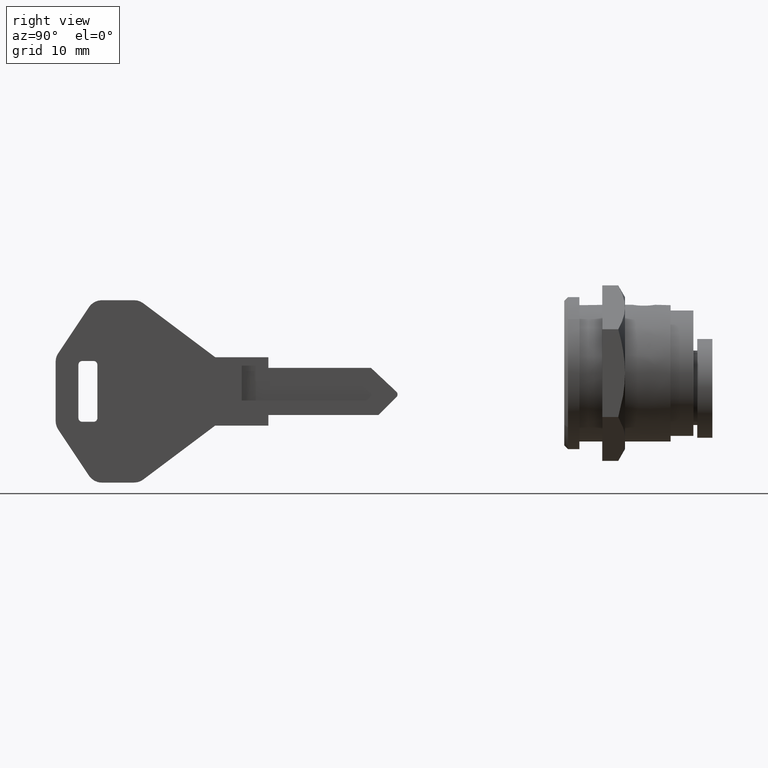
[diagram: clean part render]
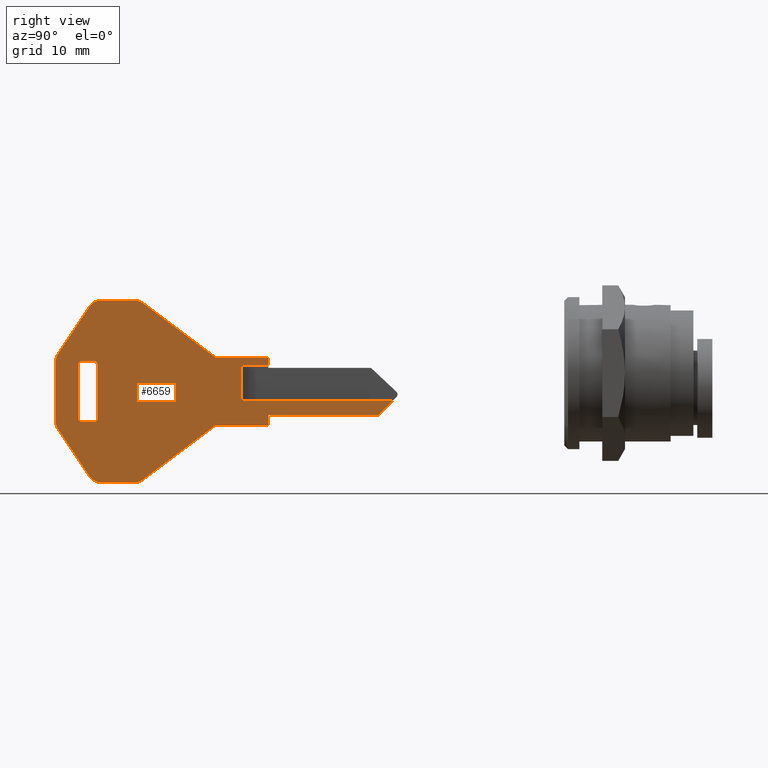
[diagram: same view with one face highlighted and labeled with its STEP entity id]
A machine part, right view. The second image highlights one B-rep face of the part: STEP entity #6659.
In plain terms, the highlighted face is a freeform B-spline surface patch.
Its self-contained STEP definition (entity closure, byte-faithful):
#5484=CARTESIAN_POINT('',(-42.434800000000003,-0.800000000000023,1.0));
#5485=VERTEX_POINT('',#5484);
#5495=CARTESIAN_POINT('',(-42.434800000000003,-0.800000000000023,-3.600000000000110));
#5496=VERTEX_POINT('',#5495);
#5497=CARTESIAN_POINT('',(-42.434800000000003,-0.800000000000023,1.0));
#5498=CARTESIAN_POINT('',(-42.434800000000003,-0.800000000000023,-3.600000000000110));
#5499=QUASI_UNIFORM_CURVE('',1,(#5497,#5498),.UNSPECIFIED.,.F.,.U.);
#5500=EDGE_CURVE('',#5485,#5496,#5499,.T.);
#5691=CARTESIAN_POINT('',(-38.934800000000003,-0.800000000000023,1.0));
#5692=VERTEX_POINT('',#5691);
#5693=CARTESIAN_POINT('',(-38.934800000000003,-0.800000000000023,1.0));
#5694=CARTESIAN_POINT('',(-42.434800000000003,-0.800000000000023,1.0));
#5695=QUASI_UNIFORM_CURVE('',1,(#5693,#5694),.UNSPECIFIED.,.F.,.U.);
#5696=EDGE_CURVE('',#5692,#5485,#5695,.T.);
#5715=CARTESIAN_POINT('',(-22.529130775788651,-0.800000000000023,-3.600000000000110));
#5716=VERTEX_POINT('',#5715);
#5717=CARTESIAN_POINT('',(-42.434800000000003,-0.800000000000023,-3.600000000000110));
#5718=CARTESIAN_POINT('',(-22.529130775788651,-0.800000000000023,-3.600000000000110));
#5719=QUASI_UNIFORM_CURVE('',1,(#5717,#5718),.UNSPECIFIED.,.F.,.U.);
#5720=EDGE_CURVE('',#5496,#5716,#5719,.T.);
#5744=CARTESIAN_POINT('',(-55.401800000000001,-0.800000000000023,9.199999999999871));
#5745=VERTEX_POINT('',#5744);
#5751=CARTESIAN_POINT('',(-45.934800000000003,-0.800000000000023,2.100000000000000));
#5752=VERTEX_POINT('',#5751);
#5753=CARTESIAN_POINT('',(-55.401800000000001,-0.800000000000023,9.199999999999871));
#5754=CARTESIAN_POINT('',(-45.934800000000003,-0.800000000000023,2.100000000000000));
#5755=QUASI_UNIFORM_CURVE('',1,(#5753,#5754),.UNSPECIFIED.,.F.,.U.);
#5756=EDGE_CURVE('',#5745,#5752,#5755,.T.);
#5780=CARTESIAN_POINT('',(-61.434800000000003,-0.800000000000023,-5.900000000000000));
#5781=VERTEX_POINT('',#5780);
#5787=CARTESIAN_POINT('',(-61.434800000000003,-0.800000000000023,1.099999999999880));
#5788=VERTEX_POINT('',#5787);
#5789=CARTESIAN_POINT('',(-61.434800000000003,-0.800000000000023,-5.900000000000000));
#5790=CARTESIAN_POINT('',(-61.434800000000003,-0.800000000000023,1.099999999999880));
#5791=QUASI_UNIFORM_CURVE('',1,(#5789,#5790),.UNSPECIFIED.,.F.,.U.);
#5792=EDGE_CURVE('',#5781,#5788,#5791,.T.);
#5829=CARTESIAN_POINT('',(-61.934800000000003,-0.800000000000023,1.599999999999880));
#5830=VERTEX_POINT('',#5829);
#5831=CARTESIAN_POINT('',(-61.434800000000003,-0.800000000000023,1.099999999999880));
#5832=CARTESIAN_POINT('',(-61.434684660874382,-0.800000000000024,1.173653316950980));
#5833=CARTESIAN_POINT('',(-61.466094995648042,-0.800000000000021,1.312629906935998));
#5834=CARTESIAN_POINT('',(-61.585297360829713,-0.800000000000024,1.473428385010988));
#5835=CARTESIAN_POINT('',(-61.746676579131453,-0.800000000000022,1.575550660927633));
#5836=CARTESIAN_POINT('',(-61.869341132623099,-0.800000000000025,1.600067279112185));
#5837=CARTESIAN_POINT('',(-61.934800000000003,-0.800000000000023,1.599999999999880));
#5838=B_SPLINE_CURVE_WITH_KNOTS('',3,(#5831,#5832,#5833,#5834,#5835,#5836,#5837),.UNSPECIFIED.,.F.,.U.,(4,1,1,1,4),(0.000000153094151,0.220920011261138,0.417279695214682,0.589107744513807,0.785476941653914),.UNSPECIFIED.);
#5839=EDGE_CURVE('',#5788,#5830,#5838,.T.);
#5862=CARTESIAN_POINT('',(-63.434800000000003,-0.800000000000023,1.600000000000000));
#5863=VERTEX_POINT('',#5862);
#5864=CARTESIAN_POINT('',(-61.934800000000003,-0.800000000000023,1.599999999999880));
#5865=CARTESIAN_POINT('',(-63.434800000000003,-0.800000000000023,1.600000000000000));
#5866=QUASI_UNIFORM_CURVE('',1,(#5864,#5865),.UNSPECIFIED.,.F.,.U.);
#5867=EDGE_CURVE('',#5830,#5863,#5866,.T.);
#5904=CARTESIAN_POINT('',(-63.934800000000003,-0.800000000000023,1.099999999999880));
#5905=VERTEX_POINT('',#5904);
#5906=CARTESIAN_POINT('',(-63.434800000000003,-0.800000000000023,1.600000000000000));
#5907=CARTESIAN_POINT('',(-63.500260222046542,-0.800000000000023,1.600067226082890));
#5908=CARTESIAN_POINT('',(-63.622922827033740,-0.800000000000023,1.575550556536872));
#5909=CARTESIAN_POINT('',(-63.784302573044698,-0.800000000000023,1.473428620159047));
#5910=CARTESIAN_POINT('',(-63.903505129757683,-0.800000000000022,1.312629762877460));
#5911=CARTESIAN_POINT('',(-63.934915257689163,-0.800000000000023,1.173653377133935));
#5912=CARTESIAN_POINT('',(-63.934800000000003,-0.800000000000023,1.099999999999880));
#5913=B_SPLINE_CURVE_WITH_KNOTS('',3,(#5906,#5907,#5908,#5909,#5910,#5911,#5912),.UNSPECIFIED.,.F.,.U.,(4,1,1,1,4),(0.000000153093930,0.196369350233716,0.368197399532799,0.564557083486602,0.785476941654050),.UNSPECIFIED.);
#5914=EDGE_CURVE('',#5863,#5905,#5913,.T.);
#5937=CARTESIAN_POINT('',(-63.934800000000003,-0.800000000000023,-5.900000000000000));
#5938=VERTEX_POINT('',#5937);
#5939=CARTESIAN_POINT('',(-63.934800000000003,-0.800000000000023,1.099999999999880));
#5940=CARTESIAN_POINT('',(-63.934800000000003,-0.800000000000023,-5.900000000000000));
#5941=QUASI_UNIFORM_CURVE('',1,(#5939,#5940),.UNSPECIFIED.,.F.,.U.);
#5942=EDGE_CURVE('',#5905,#5938,#5941,.T.);
#5979=CARTESIAN_POINT('',(-63.434800000000003,-0.800000000000023,-6.400000000000000));
#5980=VERTEX_POINT('',#5979);
#5981=CARTESIAN_POINT('',(-63.934800000000003,-0.800000000000023,-5.900000000000000));
#5982=CARTESIAN_POINT('',(-63.934867006776869,-0.800000000000024,-5.965460472775773));
#5983=CARTESIAN_POINT('',(-63.910346913499367,-0.800000000000023,-6.088114914258549));
#5984=CARTESIAN_POINT('',(-63.803809390809462,-0.800000000000023,-6.256559329661354));
#5985=CARTESIAN_POINT('',(-63.639313978227477,-0.800000000000023,-6.372333823988904));
#5986=CARTESIAN_POINT('',(-63.500253879018260,-0.800000000000023,-6.400059716177875));
#5987=CARTESIAN_POINT('',(-63.434800000000003,-0.800000000000023,-6.400000000000000));
#5988=B_SPLINE_CURVE_WITH_KNOTS('',3,(#5981,#5982,#5983,#5984,#5985,#5986,#5987),.UNSPECIFIED.,.F.,.U.,(4,1,1,1,4),(0.000000153092485,0.196369350232937,0.368197399532441,0.589107744513697,0.785476941653900),.UNSPECIFIED.);
#5989=EDGE_CURVE('',#5938,#5980,#5988,.T.);
#6012=CARTESIAN_POINT('',(-61.934800000000003,-0.800000000000023,-6.400000000000000));
#6013=VERTEX_POINT('',#6012);
#6014=CARTESIAN_POINT('',(-63.434800000000003,-0.800000000000023,-6.400000000000000));
#6015=CARTESIAN_POINT('',(-61.934800000000003,-0.800000000000023,-6.400000000000000));
#6016=QUASI_UNIFORM_CURVE('',1,(#6014,#6015),.UNSPECIFIED.,.F.,.U.);
#6017=EDGE_CURVE('',#5980,#6013,#6016,.T.);
#6052=CARTESIAN_POINT('',(-61.934800000000003,-0.800000000000023,-6.400000000000000));
#6053=CARTESIAN_POINT('',(-61.844757187724959,-0.800000000000024,-6.400244704899497));
#6054=CARTESIAN_POINT('',(-61.689567798363427,-0.800000000000021,-6.356861077800649));
#6055=CARTESIAN_POINT('',(-61.547484266287057,-0.800000000000026,-6.228006533432561));
#6056=CARTESIAN_POINT('',(-61.458741982740683,-0.800000000000019,-6.079904843197010));
#6057=CARTESIAN_POINT('',(-61.434677601298532,-0.800000000000026,-5.973659559281209));
#6058=CARTESIAN_POINT('',(-61.434800000000003,-0.800000000000023,-5.900000000000000));
#6059=B_SPLINE_CURVE_WITH_KNOTS('',3,(#6052,#6053,#6054,#6055,#6056,#6057,#6058),.UNSPECIFIED.,.F.,.U.,(4,1,1,1,4),(0.000000153093028,0.270018898110396,0.466365490627535,0.564557083486475,0.785476941653890),.UNSPECIFIED.);
#6060=EDGE_CURVE('',#6013,#5781,#6059,.T.);
#6079=CARTESIAN_POINT('',(-38.934800000000003,-0.800000000000023,2.100000000000000));
#6080=VERTEX_POINT('',#6079);
#6081=CARTESIAN_POINT('',(-45.934800000000003,-0.800000000000023,2.100000000000000));
#6082=CARTESIAN_POINT('',(-38.934800000000003,-0.800000000000023,2.100000000000000));
#6083=QUASI_UNIFORM_CURVE('',1,(#6081,#6082),.UNSPECIFIED.,.F.,.U.);
#6084=EDGE_CURVE('',#5752,#6080,#6083,.T.);
#6108=CARTESIAN_POINT('',(-24.434799999999999,-0.800000000000023,-5.500000000000000));
#6109=VERTEX_POINT('',#6108);
#6115=CARTESIAN_POINT('',(-38.934800000000003,-0.800000000000023,-5.500000000000000));
#6116=VERTEX_POINT('',#6115);
#6117=CARTESIAN_POINT('',(-24.434799999999999,-0.800000000000023,-5.500000000000000));
#6118=CARTESIAN_POINT('',(-38.934800000000003,-0.800000000000023,-5.500000000000000));
#6119=QUASI_UNIFORM_CURVE('',1,(#6117,#6118),.UNSPECIFIED.,.F.,.U.);
#6120=EDGE_CURVE('',#6109,#6116,#6119,.T.);
#6143=CARTESIAN_POINT('',(-38.934800000000003,-0.800000000000023,-6.900000000000000));
#6144=VERTEX_POINT('',#6143);
#6145=CARTESIAN_POINT('',(-38.934800000000003,-0.800000000000023,-5.500000000000000));
#6146=CARTESIAN_POINT('',(-38.934800000000003,-0.800000000000023,-6.900000000000000));
#6147=QUASI_UNIFORM_CURVE('',1,(#6145,#6146),.UNSPECIFIED.,.F.,.U.);
#6148=EDGE_CURVE('',#6116,#6144,#6147,.T.);
#6171=CARTESIAN_POINT('',(-45.934800000000003,-0.800000000000023,-6.900000000000000));
#6172=VERTEX_POINT('',#6171);
#6173=CARTESIAN_POINT('',(-38.934800000000003,-0.800000000000023,-6.900000000000000));
#6174=CARTESIAN_POINT('',(-45.934800000000003,-0.800000000000023,-6.900000000000000));
#6175=QUASI_UNIFORM_CURVE('',1,(#6173,#6174),.UNSPECIFIED.,.F.,.U.);
#6176=EDGE_CURVE('',#6144,#6172,#6175,.T.);
#6199=CARTESIAN_POINT('',(-55.401800000000001,-0.800000000000023,-14.0));
#6200=VERTEX_POINT('',#6199);
#6201=CARTESIAN_POINT('',(-45.934800000000003,-0.800000000000023,-6.900000000000000));
#6202=CARTESIAN_POINT('',(-55.401800000000001,-0.800000000000023,-14.0));
#6203=QUASI_UNIFORM_CURVE('',1,(#6201,#6202),.UNSPECIFIED.,.F.,.U.);
#6204=EDGE_CURVE('',#6172,#6200,#6203,.T.);
#6239=CARTESIAN_POINT('',(-56.601799999999997,-0.800000000000023,-14.400000000000000));
#6240=VERTEX_POINT('',#6239);
#6241=CARTESIAN_POINT('',(-56.601799999999997,-0.800000000000023,-14.400000000000000));
#6242=CARTESIAN_POINT('',(-56.427515831656649,-0.800000000000024,-14.400045107929749));
#6243=CARTESIAN_POINT('',(-55.998524323742188,-0.800000000000021,-14.343584179207740));
#6244=CARTESIAN_POINT('',(-55.605448175118411,-0.800000000000025,-14.153080584536781));
#6245=CARTESIAN_POINT('',(-55.401800000000001,-0.800000000000023,-14.0));
#6246=B_SPLINE_CURVE_WITH_KNOTS('',3,(#6241,#6242,#6243,#6244,#6245),.UNSPECIFIED.,.F.,.U.,(4,1,4),(0.000000025002516,0.522860056054549,1.287023899497986),.UNSPECIFIED.);
#6247=EDGE_CURVE('',#6240,#6200,#6246,.T.);
#6270=CARTESIAN_POINT('',(-60.864800000000002,-0.800000000000023,-14.400000000000000));
#6271=VERTEX_POINT('',#6270);
#6272=CARTESIAN_POINT('',(-56.601799999999997,-0.800000000000023,-14.400000000000000));
#6273=CARTESIAN_POINT('',(-60.864800000000002,-0.800000000000023,-14.400000000000000));
#6274=QUASI_UNIFORM_CURVE('',1,(#6272,#6273),.UNSPECIFIED.,.F.,.U.);
#6275=EDGE_CURVE('',#6240,#6271,#6274,.T.);
#6312=CARTESIAN_POINT('',(-62.528799999999997,-0.800000000000023,-13.510000000000000));
#6313=VERTEX_POINT('',#6312);
#6314=CARTESIAN_POINT('',(-62.528799999999997,-0.800000000000023,-13.510000000000000));
#6315=CARTESIAN_POINT('',(-62.387058565034692,-0.800000000000022,-13.723120084551271));
#6316=CARTESIAN_POINT('',(-62.122852509854837,-0.800000000000023,-13.989605042723580));
#6317=CARTESIAN_POINT('',(-61.666640070268649,-0.800000000000024,-14.247240540949370));
#6318=CARTESIAN_POINT('',(-61.284497713117823,-0.800000000000022,-14.371534584072039));
#6319=CARTESIAN_POINT('',(-60.997866060761879,-0.800000000000025,-14.400091069018959));
#6320=CARTESIAN_POINT('',(-60.864800000000002,-0.800000000000023,-14.400000000000000));
#6321=B_SPLINE_CURVE_WITH_KNOTS('',3,(#6314,#6315,#6316,#6317,#6318,#6319,#6320),.UNSPECIFIED.,.F.,.U.,(4,1,1,1,4),(0.000000054996480,0.767708716500230,1.105483976550476,1.566124339190238,1.965328050449966),.UNSPECIFIED.);
#6322=EDGE_CURVE('',#6313,#6271,#6321,.T.);
#6345=CARTESIAN_POINT('',(-66.579333431728799,-0.800000000000023,-7.433204635347440));
#6346=VERTEX_POINT('',#6345);
#6347=CARTESIAN_POINT('',(-62.528799999999997,-0.800000000000023,-13.510000000000000));
#6348=CARTESIAN_POINT('',(-66.579333431728799,-0.800000000000023,-7.433204635347440));
#6349=QUASI_UNIFORM_CURVE('',1,(#6347,#6348),.UNSPECIFIED.,.F.,.U.);
#6350=EDGE_CURVE('',#6313,#6346,#6349,.T.);
#6385=CARTESIAN_POINT('',(-66.934799999999996,-0.800000000000023,-6.295000000000100));
#6386=VERTEX_POINT('',#6385);
#6387=CARTESIAN_POINT('',(-66.934799999999996,-0.800000000000023,-6.295000000000100));
#6388=CARTESIAN_POINT('',(-66.934999789453997,-0.800000000000021,-6.534675752883412));
#6389=CARTESIAN_POINT('',(-66.861327622042367,-0.800000000000031,-6.938118678135708));
#6390=CARTESIAN_POINT('',(-66.672669408100788,-0.800000000000016,-7.298397091506386));
#6391=CARTESIAN_POINT('',(-66.579333431728799,-0.800000000000023,-7.433204635347440));
#6392=B_SPLINE_CURVE_WITH_KNOTS('',3,(#6387,#6388,#6389,#6390,#6391),.UNSPECIFIED.,.F.,.U.,(4,1,4),(0.000000023987031,0.718937478686960,1.210845506727563),.UNSPECIFIED.);
#6393=EDGE_CURVE('',#6386,#6346,#6392,.T.);
#6416=CARTESIAN_POINT('',(-66.934799999999996,-0.800000000000023,1.494447999999892));
#6417=VERTEX_POINT('',#6416);
#6418=CARTESIAN_POINT('',(-66.934799999999996,-0.800000000000023,-6.295000000000100));
#6419=CARTESIAN_POINT('',(-66.934799999999996,-0.800000000000023,1.494447999999892));
#6420=QUASI_UNIFORM_CURVE('',1,(#6418,#6419),.UNSPECIFIED.,.F.,.U.);
#6421=EDGE_CURVE('',#6386,#6417,#6420,.T.);
#6456=CARTESIAN_POINT('',(-66.598900579497396,-0.800000000000023,2.603848406217820));
#6457=VERTEX_POINT('',#6456);
#6458=CARTESIAN_POINT('',(-66.598900579497396,-0.800000000000023,2.603848406217820));
#6459=CARTESIAN_POINT('',(-66.714521460859572,-0.800000000000025,2.430627800987279));
#6460=CARTESIAN_POINT('',(-66.880366480918042,-0.800000000000020,2.070168108583510));
#6461=CARTESIAN_POINT('',(-66.934870789537996,-0.800000000000024,1.678209315565442));
#6462=CARTESIAN_POINT('',(-66.934799999999996,-0.800000000000023,1.494447999999892));
#6463=B_SPLINE_CURVE_WITH_KNOTS('',3,(#6458,#6459,#6460,#6461,#6462),.UNSPECIFIED.,.F.,.U.,(4,1,4),(0.000000020736863,0.624751508344385,1.176021766054201),.UNSPECIFIED.);
#6464=EDGE_CURVE('',#6457,#6417,#6463,.T.);
#6487=CARTESIAN_POINT('',(-62.548045375210087,-0.800000000000023,8.680131939548950));
#6488=VERTEX_POINT('',#6487);
#6489=CARTESIAN_POINT('',(-66.598900579497396,-0.800000000000023,2.603848406217820));
#6490=CARTESIAN_POINT('',(-62.548045375210087,-0.800000000000023,8.680131939548950));
#6491=QUASI_UNIFORM_CURVE('',1,(#6489,#6490),.UNSPECIFIED.,.F.,.U.);
#6492=EDGE_CURVE('',#6457,#6488,#6491,.T.);
#6529=CARTESIAN_POINT('',(-60.864800000000002,-0.800000000000023,9.600000000000000));
#6530=VERTEX_POINT('',#6529);
#6531=CARTESIAN_POINT('',(-60.864800000000002,-0.800000000000023,9.600000000000000));
#6532=CARTESIAN_POINT('',(-61.073208511498663,-0.800000000000021,9.600118567614747));
#6533=CARTESIAN_POINT('',(-61.427395110364138,-0.800000000000031,9.544099982801418));
#6534=CARTESIAN_POINT('',(-61.876833478919700,-0.800000000000012,9.342304120408086));
#6535=CARTESIAN_POINT('',(-62.248389648204302,-0.800000000000039,9.069699299905798));
#6536=CARTESIAN_POINT('',(-62.452423912674298,-0.800000000000008,8.829243103409281));
#6537=CARTESIAN_POINT('',(-62.548045375210087,-0.800000000000023,8.680131939548950));
#6538=B_SPLINE_CURVE_WITH_KNOTS('',3,(#6531,#6532,#6533,#6534,#6535,#6536,#6537),.UNSPECIFIED.,.F.,.U.,(4,1,1,1,4),(0.000000052983301,0.625185058650228,1.062797584958854,1.469176780467822,2.000582031001581),.UNSPECIFIED.);
#6539=EDGE_CURVE('',#6530,#6488,#6538,.T.);
#6562=CARTESIAN_POINT('',(-56.601799999999997,-0.800000000000023,9.599999999999879));
#6563=VERTEX_POINT('',#6562);
#6564=CARTESIAN_POINT('',(-60.864800000000002,-0.800000000000023,9.600000000000000));
#6565=CARTESIAN_POINT('',(-56.601799999999997,-0.800000000000023,9.599999999999879));
#6566=QUASI_UNIFORM_CURVE('',1,(#6564,#6565),.UNSPECIFIED.,.F.,.U.);
#6567=EDGE_CURVE('',#6530,#6563,#6566,.T.);
#6600=CARTESIAN_POINT('',(-55.401800000000001,-0.800000000000023,9.199999999999871));
#6601=CARTESIAN_POINT('',(-55.605446832431262,-0.800000000000024,9.353084628540321));
#6602=CARTESIAN_POINT('',(-55.998525999239590,-0.800000000000019,9.543578477194433));
#6603=CARTESIAN_POINT('',(-56.427514993529861,-0.800000000000026,9.600047021941370));
#6604=CARTESIAN_POINT('',(-56.601799999999997,-0.800000000000023,9.599999999999879));
#6605=B_SPLINE_CURVE_WITH_KNOTS('',3,(#6600,#6601,#6602,#6603,#6604),.UNSPECIFIED.,.F.,.U.,(4,1,4),(0.000000025002320,0.764163868445540,1.287023899498037),.UNSPECIFIED.);
#6606=EDGE_CURVE('',#5745,#6563,#6605,.T.);
#6612=CARTESIAN_POINT('',(-69.152862257985248,-0.800000000000000,10.798800318328141));
#6613=CARTESIAN_POINT('',(-20.311066532715301,-0.800000000000000,10.798800318328141));
#6614=CARTESIAN_POINT('',(-69.152862257985248,-0.800000000000000,-15.598798816291101));
#6615=CARTESIAN_POINT('',(-20.311066532715301,-0.800000000000000,-15.598798816291101));
#6616=B_SPLINE_SURFACE_WITH_KNOTS('',1,1,((#6612,#6614),(#6613,#6615)),.UNSPECIFIED.,.F.,.F.,.U.,(2,2),(2,2),(0.0,48.841795725269947),(0.0,26.397599134619231),.UNSPECIFIED.);
#6617=CARTESIAN_POINT('',(-22.529130775788651,-0.800000000000023,-3.600000000000110));
#6618=CARTESIAN_POINT('',(-24.434799999999999,-0.800000000000023,-5.500000000000000));
#6619=QUASI_UNIFORM_CURVE('',1,(#6617,#6618),.UNSPECIFIED.,.F.,.U.);
#6620=EDGE_CURVE('',#5716,#6109,#6619,.T.);
#6621=ORIENTED_EDGE('',*,*,#6620,.F.);
#6622=ORIENTED_EDGE('',*,*,#5720,.F.);
#6623=ORIENTED_EDGE('',*,*,#5500,.F.);
#6624=ORIENTED_EDGE('',*,*,#5696,.F.);
#6625=CARTESIAN_POINT('',(-38.934800000000003,-0.800000000000023,2.100000000000000));
#6626=CARTESIAN_POINT('',(-38.934800000000003,-0.800000000000023,1.0));
#6627=QUASI_UNIFORM_CURVE('',1,(#6625,#6626),.UNSPECIFIED.,.F.,.U.);
#6628=EDGE_CURVE('',#6080,#5692,#6627,.T.);
#6629=ORIENTED_EDGE('',*,*,#6628,.F.);
#6630=ORIENTED_EDGE('',*,*,#6084,.F.);
#6631=ORIENTED_EDGE('',*,*,#5756,.F.);
#6632=ORIENTED_EDGE('',*,*,#6606,.T.);
#6633=ORIENTED_EDGE('',*,*,#6567,.F.);
#6634=ORIENTED_EDGE('',*,*,#6539,.T.);
#6635=ORIENTED_EDGE('',*,*,#6492,.F.);
#6636=ORIENTED_EDGE('',*,*,#6464,.T.);
#6637=ORIENTED_EDGE('',*,*,#6421,.F.);
#6638=ORIENTED_EDGE('',*,*,#6393,.T.);
#6639=ORIENTED_EDGE('',*,*,#6350,.F.);
#6640=ORIENTED_EDGE('',*,*,#6322,.T.);
#6641=ORIENTED_EDGE('',*,*,#6275,.F.);
#6642=ORIENTED_EDGE('',*,*,#6247,.T.);
#6643=ORIENTED_EDGE('',*,*,#6204,.F.);
#6644=ORIENTED_EDGE('',*,*,#6176,.F.);
#6645=ORIENTED_EDGE('',*,*,#6148,.F.);
#6646=ORIENTED_EDGE('',*,*,#6120,.F.);
#6647=EDGE_LOOP('',(#6621,#6622,#6623,#6624,#6629,#6630,#6631,#6632,#6633,#6634,#6635,#6636,#6637,#6638,#6639,#6640,#6641,#6642,#6643,#6644,#6645,#6646));
#6648=FACE_OUTER_BOUND('',#6647,.T.);
#6649=ORIENTED_EDGE('',*,*,#6060,.F.);
#6650=ORIENTED_EDGE('',*,*,#6017,.F.);
#6651=ORIENTED_EDGE('',*,*,#5989,.F.);
#6652=ORIENTED_EDGE('',*,*,#5942,.F.);
#6653=ORIENTED_EDGE('',*,*,#5914,.F.);
#6654=ORIENTED_EDGE('',*,*,#5867,.F.);
#6655=ORIENTED_EDGE('',*,*,#5839,.F.);
#6656=ORIENTED_EDGE('',*,*,#5792,.F.);
#6657=EDGE_LOOP('',(#6649,#6650,#6651,#6652,#6653,#6654,#6655,#6656));
#6658=FACE_BOUND('',#6657,.T.);
#6659=ADVANCED_FACE('',(#6648,#6658),#6616,.F.);